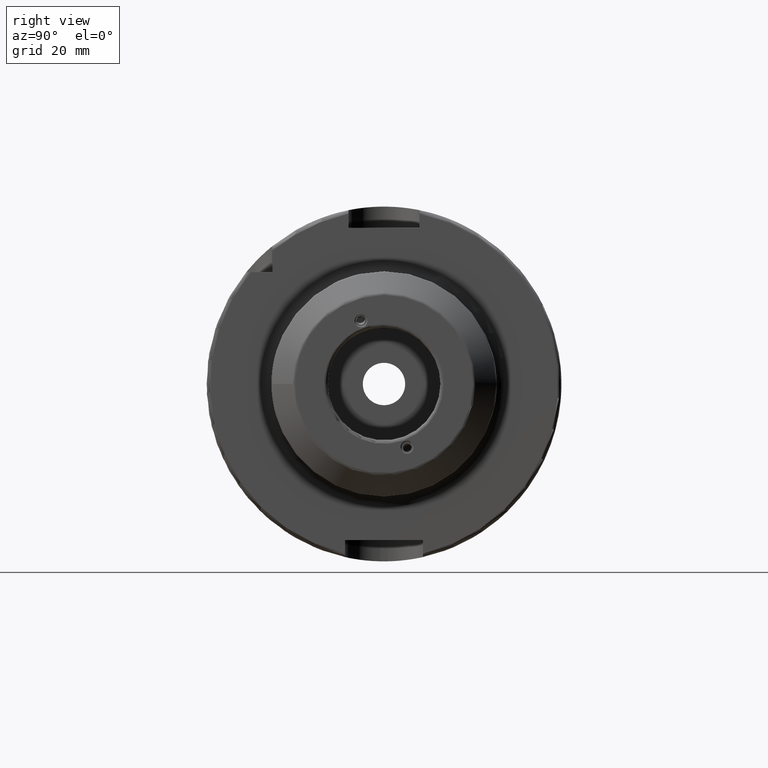
[diagram: clean part render]
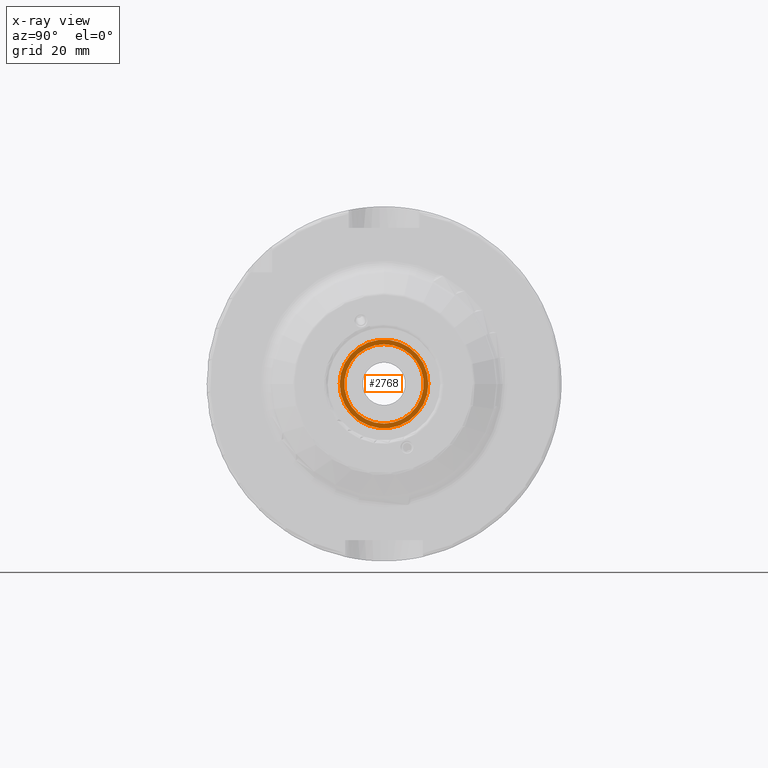
[diagram: x-ray — body ghosted, one internal face saturated and labeled with its STEP entity id]
A machine part, right view, then the same camera in x-ray: the body is ghosted and one INTERNAL B-rep face — a face not visible from any outside direction — is saturated and labeled: STEP entity #2768.
In plain terms, the highlighted planar face has unit normal (-1, 0, 0).
Its self-contained STEP definition (entity closure, byte-faithful):
#504=FACE_BOUND('',#797,.T.);
#632=FACE_OUTER_BOUND('',#796,.T.);
#796=EDGE_LOOP('',(#2520,#2521));
#797=EDGE_LOOP('',(#2522));
#971=CIRCLE('',#3085,11.188101);
#982=CIRCLE('',#3101,12.5);
#983=CIRCLE('',#3102,12.5);
#1283=VERTEX_POINT('',#6133);
#1292=VERTEX_POINT('',#6160);
#1293=VERTEX_POINT('',#6162);
#1698=EDGE_CURVE('',#1283,#1283,#971,.T.);
#1711=EDGE_CURVE('',#1292,#1293,#982,.T.);
#1712=EDGE_CURVE('',#1293,#1292,#983,.T.);
#2520=ORIENTED_EDGE('',*,*,#1712,.F.);
#2521=ORIENTED_EDGE('',*,*,#1711,.F.);
#2522=ORIENTED_EDGE('',*,*,#1698,.T.);
#2638=PLANE('',#3103);
#2768=ADVANCED_FACE('',(#632,#504),#2638,.F.);
#3085=AXIS2_PLACEMENT_3D('',#6135,#3826,#3827);
#3101=AXIS2_PLACEMENT_3D('',#6163,#3860,#3861);
#3102=AXIS2_PLACEMENT_3D('',#6164,#3862,#3863);
#3103=AXIS2_PLACEMENT_3D('',#6165,#3864,#3865);
#3826=DIRECTION('center_axis',(-1.,0.,0.));
#3827=DIRECTION('ref_axis',(0.,0.,1.));
#3860=DIRECTION('center_axis',(-1.,0.,0.));
#3861=DIRECTION('ref_axis',(0.,0.,1.));
#3862=DIRECTION('center_axis',(-1.,0.,0.));
#3863=DIRECTION('ref_axis',(0.,0.,1.));
#3864=DIRECTION('center_axis',(-1.,0.,0.));
#3865=DIRECTION('ref_axis',(0.,0.,1.));
#6133=CARTESIAN_POINT('',(22.5,-1.37014720781873E-15,-11.188101));
#6135=CARTESIAN_POINT('Origin',(22.5,0.,0.));
#6160=CARTESIAN_POINT('',(22.5,-12.5,1.53080849893419E-15));
#6162=CARTESIAN_POINT('',(22.5,12.5,0.));
#6163=CARTESIAN_POINT('Origin',(22.5,0.,0.));
#6164=CARTESIAN_POINT('Origin',(22.5,0.,0.));
#6165=CARTESIAN_POINT('Origin',(22.5,10.,0.));